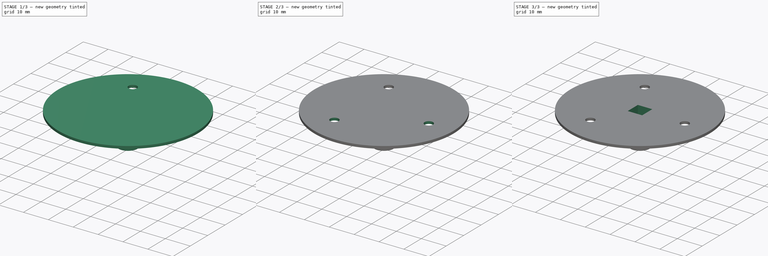
[diagram: build sequence overview — one tinted view per stage of 3, left to right]
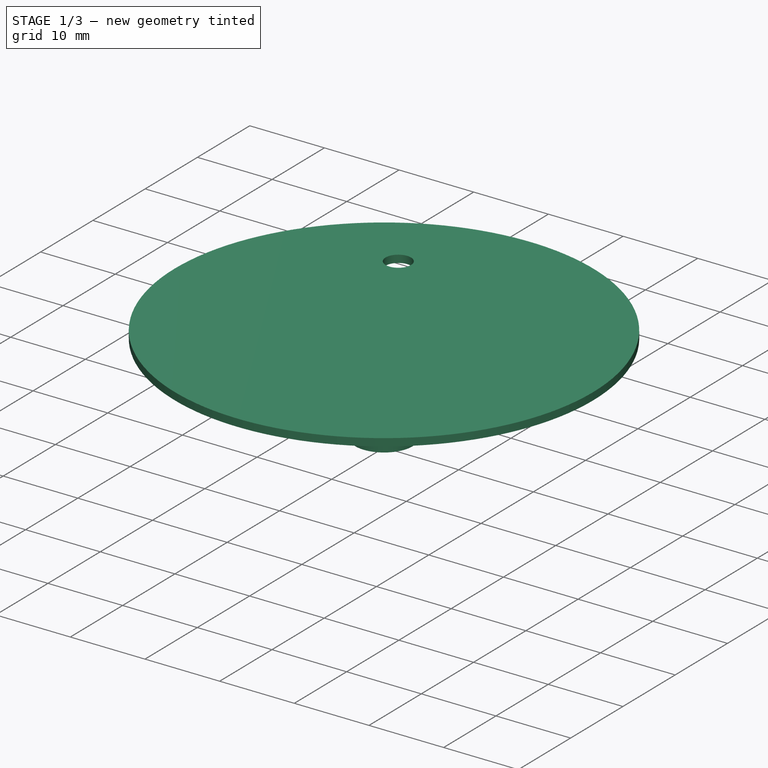
[diagram: stage 1 of 3 — iso view after this stage's code; geometry added in this stage tinted green]
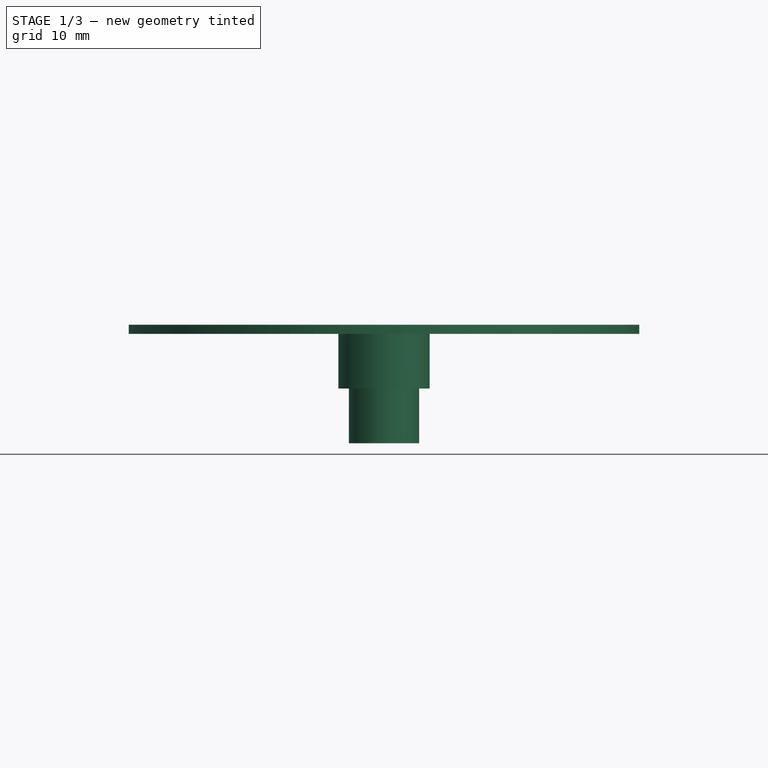
[diagram: stage 1 of 3 — front view after this stage's code; geometry added in this stage tinted green]
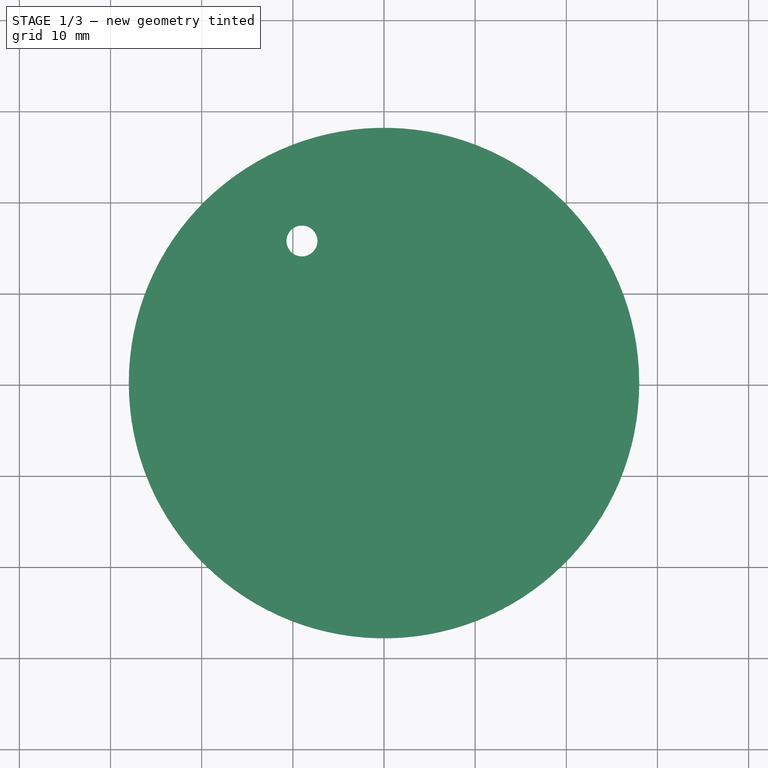
[diagram: stage 1 of 3 — top view after this stage's code; geometry added in this stage tinted green]
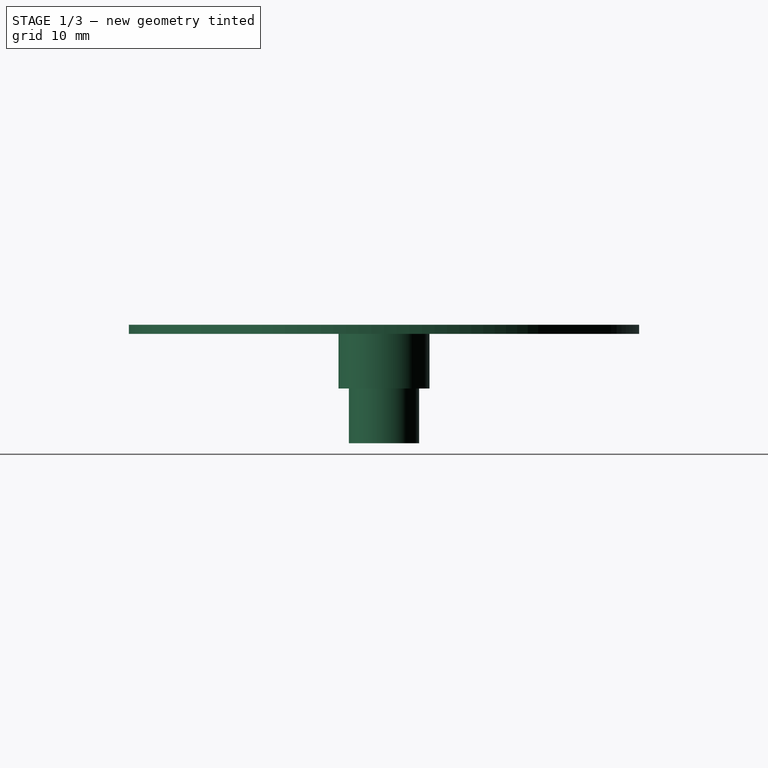
[diagram: stage 1 of 3 — right view after this stage's code; geometry added in this stage tinted green]
FCSTD DOCUMENT  (FreeCAD 1.0RUnknown)
Label: Shaft
License: All rights reserved
LicenseURL: http://en.wikipedia.org/wiki/All_rights_reserved
objects: PartDesign::Plane×4, Sketcher::SketchObject×4, PartDesign::Hole×2, App::Link×1, PartDesign::Revolution×1, PartDesign::PolarPattern×1, PartDesign::Pocket×1, PartDesign::Body×1
note: 27 computed .brp shape members not serialized (recipe doc carries the construction recipe); baked Part::Feature solids carry a one-line shape summary decoded from their .brp
EXTERNAL_REF file=Resources.FCStd obj=Spreadsheet

FEATURE [App::Link] Link  label="Dimensions"
  LinkedObject = -> <external Resources.FCStd>#Spreadsheet
FEATURE [PartDesign::Plane] DatumPlane  label="Plane_BaseBottom"
  AttachmentSupport = -> [XY_Plane]
  Length = 60
  MapMode = 5
  ResizeMode = 0
  Width = 60
FEATURE [PartDesign::Plane] DatumPlane001  label="Plane_BaseTop"
  AttachmentOffset = pos=(0,0,-1) rot=(0,0,1;0rad)
  AttachmentSupport = -> [DatumPlane]
  Length = 60
  MapMode = 5
  Placement = pos=(0,0,-1) rot=(0,0,1;0rad)
  ResizeMode = 0
  Width = 60
  expr: .AttachmentOffset.Base.z = -<<Dimensions>>.shaft_base_thickness
FEATURE [PartDesign::Plane] DatumPlane002  label="Plane_Spacer"
  AttachmentOffset = pos=(0,0,-6) rot=(0,0,1;0rad)
  AttachmentSupport = -> [DatumPlane001]
  Length = 60
  MapMode = 5
  Placement = pos=(0,0,-7) rot=(0,0,1;0rad)
  ResizeMode = 0
  Width = 60
  expr: .AttachmentOffset.Base.z = -<<Dimensions>>.shaft_spacer_length
FEATURE [PartDesign::Plane] DatumPlane003  label="Plane_ShaftEnd"
  AttachmentOffset = pos=(0,0,-6) rot=(0,0,1;0rad)
  AttachmentSupport = -> [DatumPlane002]
  Length = 60
  MapMode = 5
  Placement = pos=(0,0,-13) rot=(0,0,1;0rad)
  ResizeMode = 0
  Width = 60
  expr: .AttachmentOffset.Base.z = -<<Dimensions>>.bearing_B + 1 mm
FEATURE [Sketcher::SketchObject] Sketch
  ArcFitTolerance = 0
  AttachmentSupport = -> [XZ_Plane]
  ExternalGeometry = -> [DatumPlane003,DatumPlane002,DatumPlane001,DatumPlane]
  FullyConstrained = true
  MakeInternals = false
  MapMode = 5
  Placement = pos=(0,0,0) rot=(1,0,0;1.5708rad)
  expr: Constraints[20] = <<Dimensions>>.index_mirror_base_diameter / 2
  expr: Constraints[21] = -<<Dimensions>>.bearing_da / 2
  expr: Constraints[22] = <<Dimensions>>.bearing_d / 2 - <<Dimensions>>.clearance_tight_fit
  sketch-geometry (8):
    g0: LineSegment StartX=0 StartY=0 StartZ=0 EndX=-28 EndY=0 EndZ=0
    g1: LineSegment StartX=-28 StartY=0 StartZ=0 EndX=-28 EndY=-1 EndZ=0
    g2: LineSegment StartX=-28 StartY=-1 StartZ=0 EndX=-5 EndY=-1 EndZ=0
    g3: LineSegment StartX=-5 StartY=-1 StartZ=0 EndX=-5 EndY=-7 EndZ=0
    g4: LineSegment StartX=-5 StartY=-7 StartZ=0 EndX=-3.85 EndY=-7 EndZ=0
    g5: LineSegment StartX=-3.85 StartY=-7 StartZ=0 EndX=-3.85 EndY=-13 EndZ=0
    g6: LineSegment StartX=-3.85 StartY=-13 StartZ=0 EndX=0 EndY=-13 EndZ=0
    g7: LineSegment StartX=0 StartY=-13 StartZ=0 EndX=0 EndY=0 EndZ=0
  constraints (23):
    c: Horizontal(g0)
    c: Coincident(g0,g1)
    c: PointOnObject(g1,g-5)
    c: Vertical(g1)
    c: Coincident(g0,g-1)
    c: Coincident(g2,g1)
    c: Coincident(g3,g2)
    c: Vertical(g3)
    c: Coincident(g4,g3)
    c: Coincident(g5,g4)
    c: Vertical(g5)
    c: Coincident(g6,g5)
    c: Coincident(g7,g6)
    c: Coincident(g7,g0)
    c: Vertical(g7)
    c: PointOnObject(g5,g-3)
    c: PointOnObject(g3,g-4)
    c: PointOnObject(g2,g-5)
    c: PointOnObject(g4,g-4)
    c: PointOnObject(g6,g-3)
    c: Distance(g0) = 28
    c: DistanceX(g3) = -5
    c: DistanceX(g6,g6) = 3.85
FEATURE [PartDesign::Revolution] Revolution
  Angle = 360
  Angle2 = 60
  Axis = (0,2e-16,1)
  Base = (0,0,0)
  Placement = pos=(0,0,0) rot=(1,0,0;1.5708rad)
  Profile = -> Sketch
  ReferenceAxis = -> Sketch [V_Axis]
  Suppressed = false
  Type = 0
FEATURE [Sketcher::SketchObject] Sketch001
  ArcFitTolerance = 0
  AttachmentSupport = -> [DatumPlane]
  FullyConstrained = true
  MakeInternals = false
  MapMode = 5
  expr: Constraints[0] = <<Dimensions>>.index_mirror_screw_diameter
  expr: Constraints[1] = <<Dimensions>>.index_mirror_screw_center_distance
  sketch-geometry (2):
    g0: Circle CenterX=-9 CenterY=15.5885 CenterZ=0 NormalX=0 NormalY=0 NormalZ=1 AngleXU=0 Radius=1.5
    g1: LineSegment [constr] StartX=-9 StartY=15.5885 StartZ=0 EndX=0 EndY=-1.8e-15 EndZ=0
  constraints (5):
    c: Diameter(g0) = 3
    c: Distance(g-1,g0) = 18
    c: Coincident(g1,g0)
    c: Coincident(g1,g-1)
    c: Angle(g-2,g1) = 0.523599
FEATURE [PartDesign::Hole] Hole  label="Hole_IndexArm"
  BaseFeature = -> Revolution
  CustomThreadClearance = 0
  Depth = 131.59
  DepthType = 1
  Diameter = 3.4
  DrillForDepth = false
  DrillPoint = 1
  DrillPointAngle = 118
  HoleCutCountersinkAngle = 90
  HoleCutCustomValues = false
  HoleCutDepth = 0
  HoleCutDiameter = 6.1
  HoleCutType = 0
  ModelThread = false
  Placement = pos=(0,0,0) rot=(1,0,0;1.5708rad)
  Profile = -> Sketch001
  Suppressed = false
  Tapered = false
  TaperedAngle = 90
  ThreadClass = 0
  ThreadDepth = 131.59
  ThreadDepthType = 0
  ThreadDirection = 0
  ThreadFit = 0
  ThreadSize = 9
  ThreadType = 1
  Threaded = false
  UseCustomThreadClearance = false
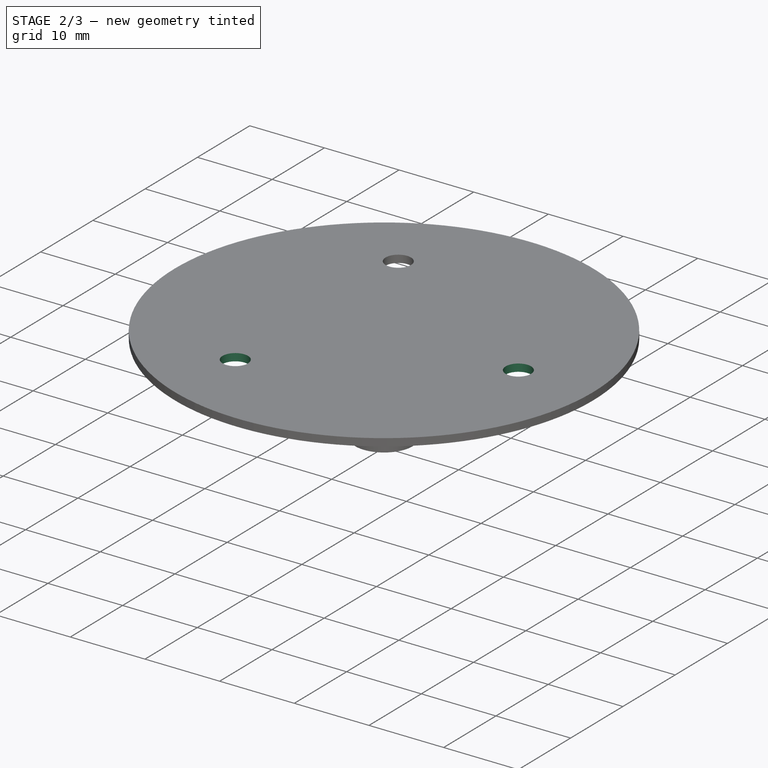
[diagram: stage 2 of 3 — iso view after this stage's code; geometry added in this stage tinted green]
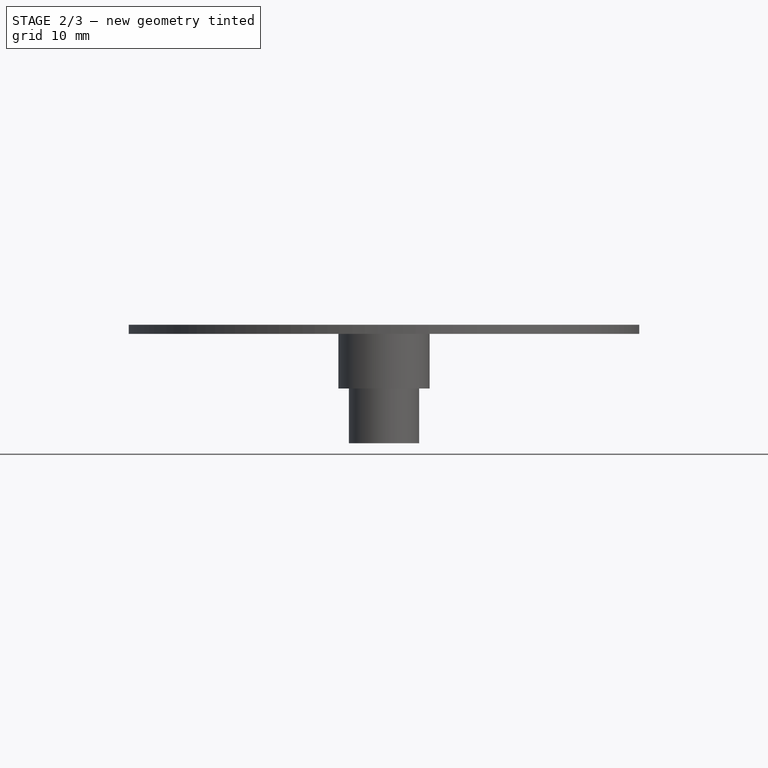
[diagram: stage 2 of 3 — front view after this stage's code; geometry added in this stage tinted green]
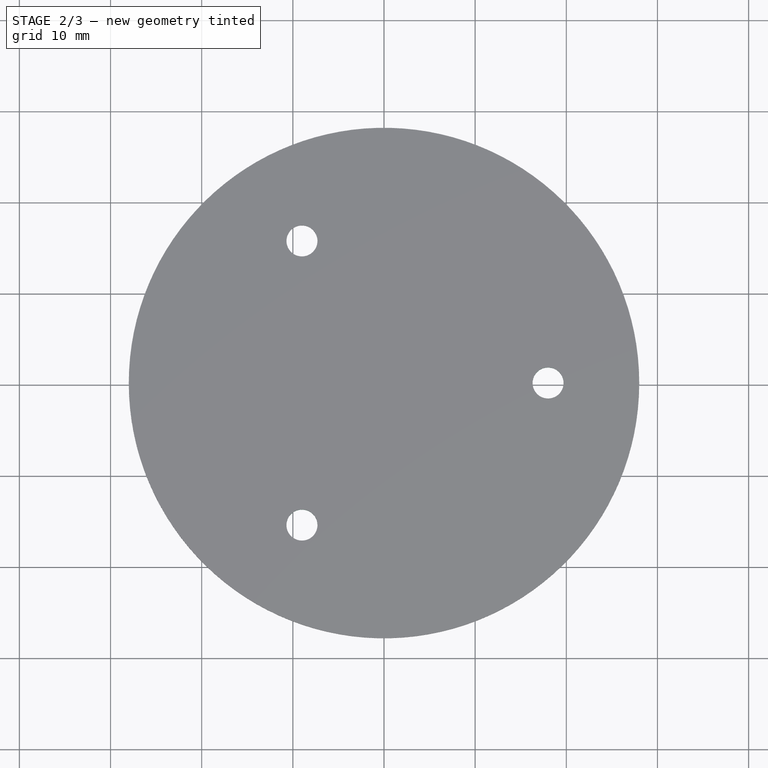
[diagram: stage 2 of 3 — top view after this stage's code; geometry added in this stage tinted green]
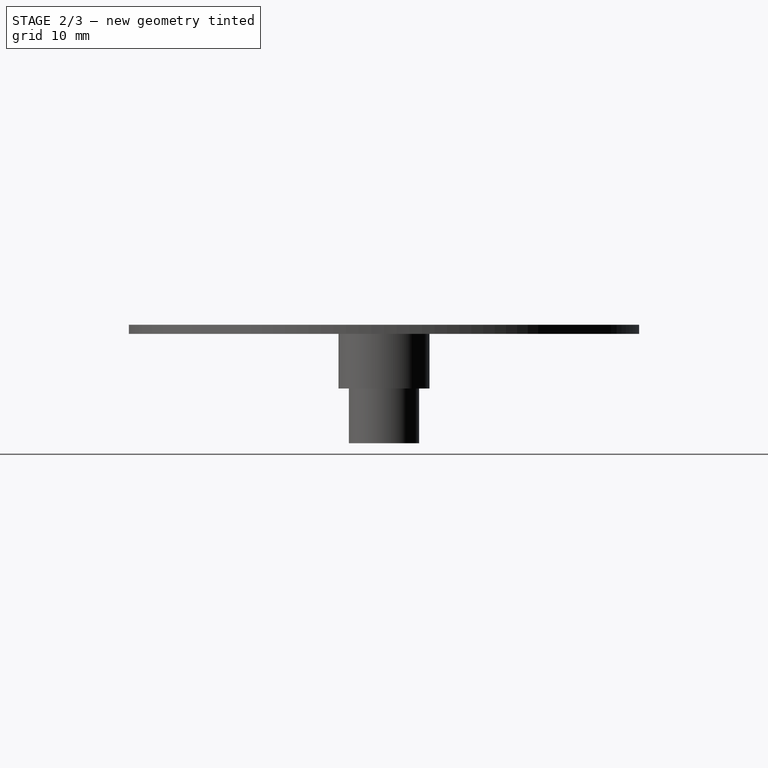
[diagram: stage 2 of 3 — right view after this stage's code; geometry added in this stage tinted green]
FEATURE [PartDesign::PolarPattern] PolarPattern  label="PolarPattern_Holes"
  Angle = 360
  Axis = -> Z_Axis
  BaseFeature = -> Hole
  Mode = 0
  Occurrences = 3
  Offset = 120
  Originals = -> [Hole]
  Placement = pos=(0,0,0) rot=(1,0,0;1.5708rad)
  Suppressed = false
  TransformMode = 0
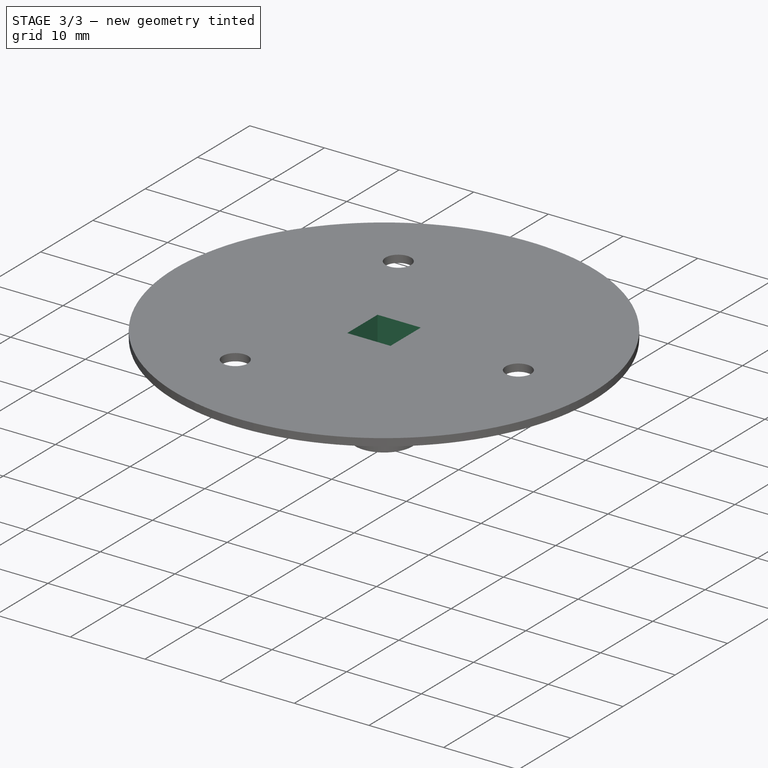
[diagram: stage 3 of 3 — iso view after this stage's code; geometry added in this stage tinted green]
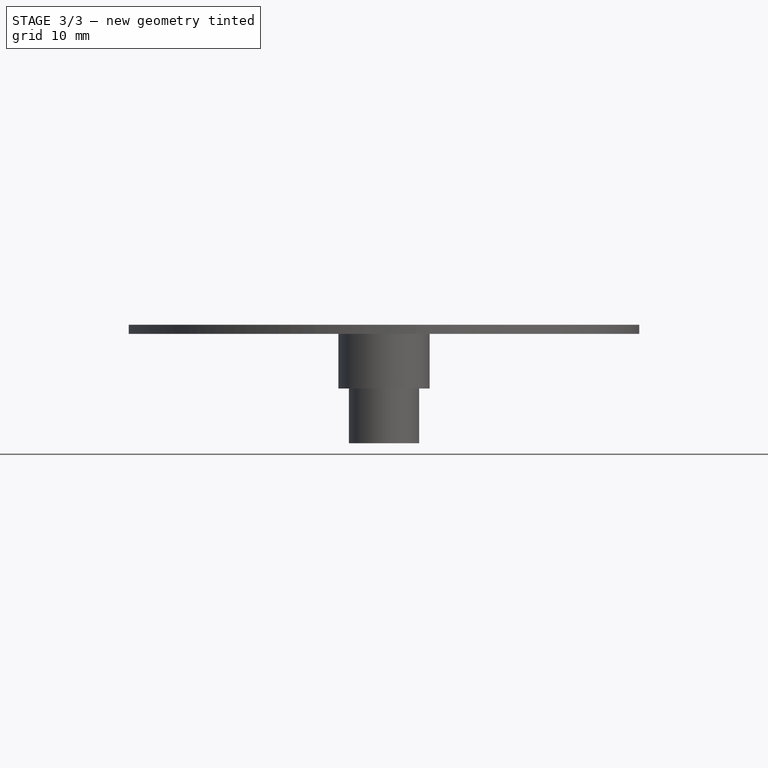
[diagram: stage 3 of 3 — front view after this stage's code; geometry added in this stage tinted green]
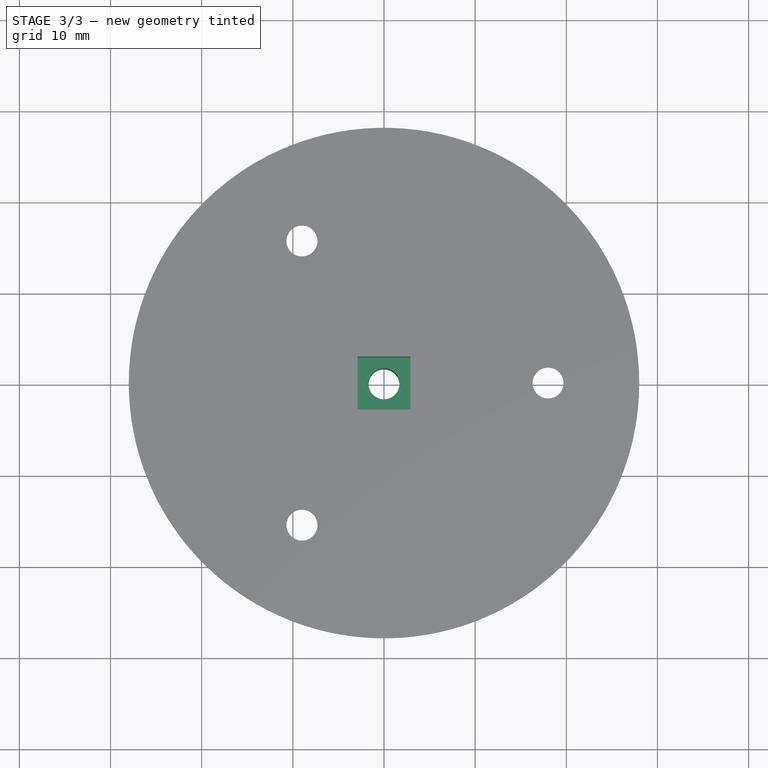
[diagram: stage 3 of 3 — top view after this stage's code; geometry added in this stage tinted green]
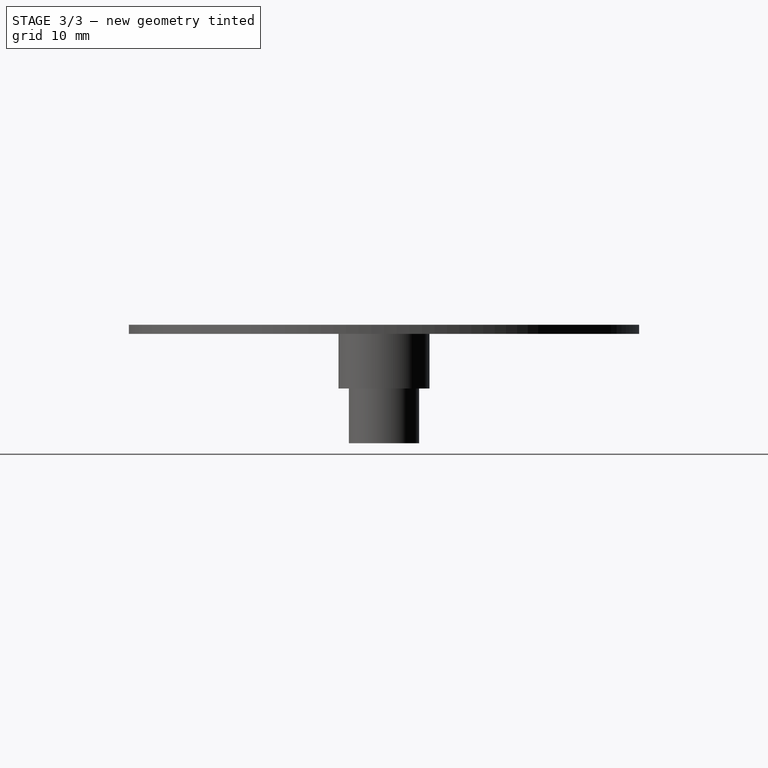
[diagram: stage 3 of 3 — right view after this stage's code; geometry added in this stage tinted green]
FEATURE [Sketcher::SketchObject] Sketch002
  ArcFitTolerance = 0
  AttachmentSupport = -> [DatumPlane]
  FullyConstrained = true
  MakeInternals = false
  MapMode = 5
  expr: Constraints[1] = <<Dimensions>>.shaft_end_cover_screw_diameter
  sketch-geometry (1):
    g0: Circle CenterX=0 CenterY=0 CenterZ=0 NormalX=0 NormalY=0 NormalZ=1 AngleXU=0 Radius=1.5
  constraints (2):
    c: Coincident(g0,g-1)
    c: Diameter(g0) = 3
FEATURE [PartDesign::Hole] Hole001  label="Hole_EndCover"
  BaseFeature = -> PolarPattern
  CustomThreadClearance = 0
  Depth = 10
  DepthType = 1
  Diameter = 3.4
  DrillForDepth = false
  DrillPoint = 0
  DrillPointAngle = 118
  HoleCutCountersinkAngle = 90
  HoleCutCustomValues = false
  HoleCutDepth = 4
  HoleCutDiameter = 3.9
  HoleCutType = 1
  ModelThread = false
  Placement = pos=(0,0,0) rot=(1,0,0;1.5708rad)
  Profile = -> Sketch002
  Suppressed = false
  Tapered = false
  TaperedAngle = 90
  ThreadClass = 0
  ThreadDepth = 10
  ThreadDepthType = 0
  ThreadDirection = 0
  ThreadFit = 0
  ThreadSize = 9
  ThreadType = 1
  Threaded = false
  UseCustomThreadClearance = false
  expr: Depth = <<Dimensions>>.shaft_end_cover_screw_length + <<Dimensions>>.screw_hole_extra_depth - <<Dimensions>>.bearing_housing_min_thickness
  expr: HoleCutDepth = <<Dimensions>>.shaft_end_cover_ti_L
  expr: HoleCutDiameter = <<Dimensions>>.shaft_end_cover_ti_D
  expr: ThreadSize = <<Dimensions>>.shaft_end_cover_screw_type
FEATURE [Sketcher::SketchObject] Sketch003
  ArcFitTolerance = 0
  AttachmentSupport = -> [DatumPlane]
  FullyConstrained = true
  MakeInternals = false
  MapMode = 5
  expr: Constraints[10] = 5.5 mm + 2 * <<Dimensions>>.clearance_tight_fit
  sketch-geometry (4):
    g0: LineSegment StartX=-2.9 StartY=2.9 StartZ=0 EndX=2.9 EndY=2.9 EndZ=0
    g1: LineSegment StartX=2.9 StartY=2.9 StartZ=0 EndX=2.9 EndY=-2.9 EndZ=0
    g2: LineSegment StartX=2.9 StartY=-2.9 StartZ=0 EndX=-2.9 EndY=-2.9 EndZ=0
    g3: LineSegment StartX=-2.9 StartY=-2.9 StartZ=0 EndX=-2.9 EndY=2.9 EndZ=0
  constraints (11):
    c: Coincident(g0,g1)
    c: Coincident(g1,g2)
    c: Coincident(g2,g3)
    c: Coincident(g3,g0)
    c: Horizontal(g0)
    c: Horizontal(g2)
    c: Vertical(g1)
    c: Vertical(g3)
    c: Symmetric(g0,g1,g-1)
    c: Equal(g1,g0)
    c: Distance(g0) = 5.8
FEATURE [PartDesign::Pocket] Pocket
  BaseFeature = -> Hole001
  Direction = (0,0,-1)
  Length = 5
  Length2 = 5
  Placement = pos=(0,0,0) rot=(1,0,0;1.5708rad)
  Profile = -> Sketch003
  ReferenceAxis = -> Sketch003 [N_Axis]
  Suppressed = false
  Type = 0
FEATURE [PartDesign::Body] Body  label="Shaft"
  AllowCompound = false
  Group = -> [DatumPlane,DatumPlane001,DatumPlane002,DatumPlane003,Sketch,Revolution,Sketch001,Hole,PolarPattern,Sketch002,Hole001,Sketch003,Pocket]
  Origin = -> Origin
  Tip = -> Pocket
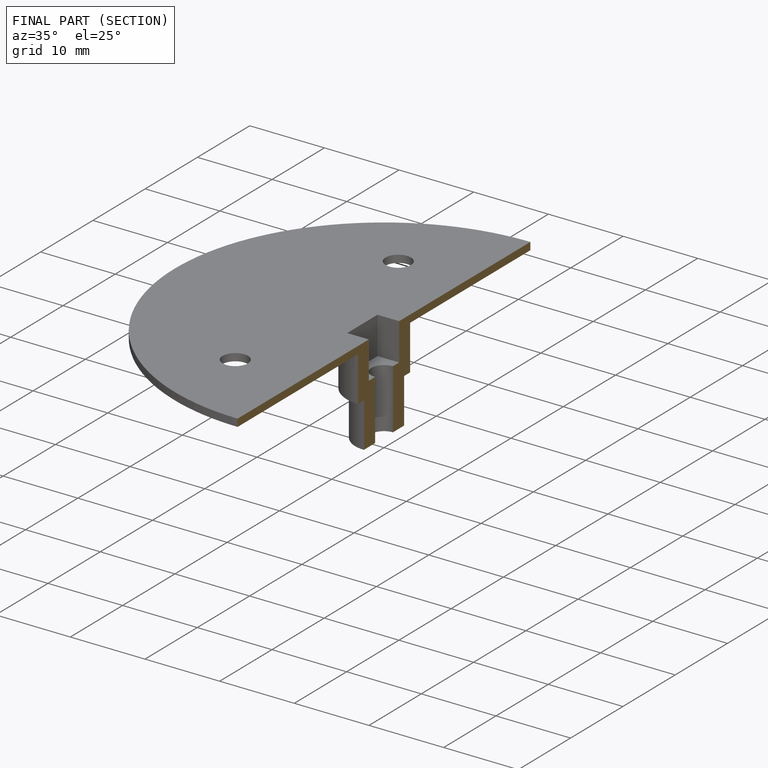
[diagram: finished part — half-section view (interior)]
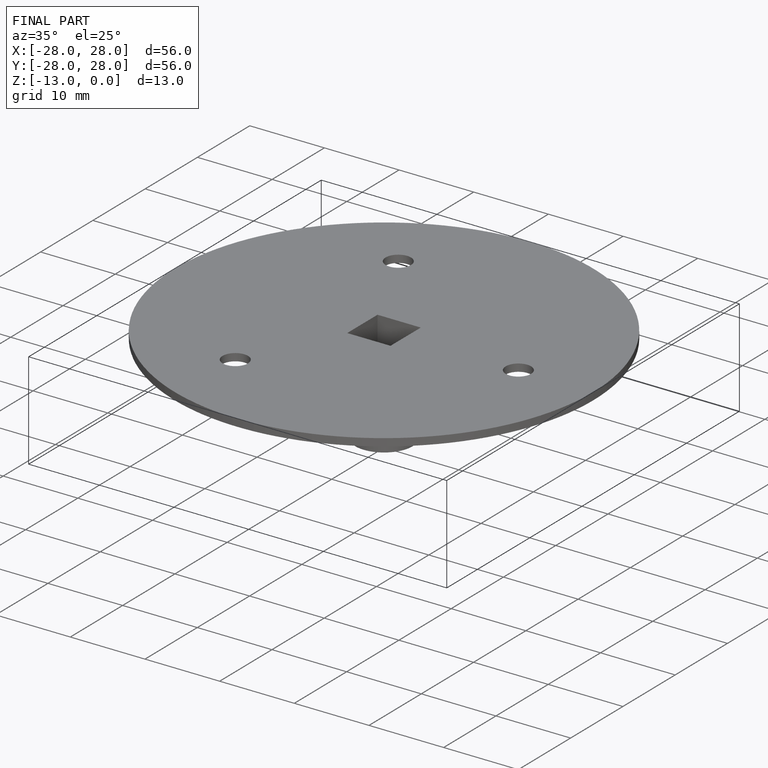
[diagram: finished part — iso view with bounding-box wireframe]
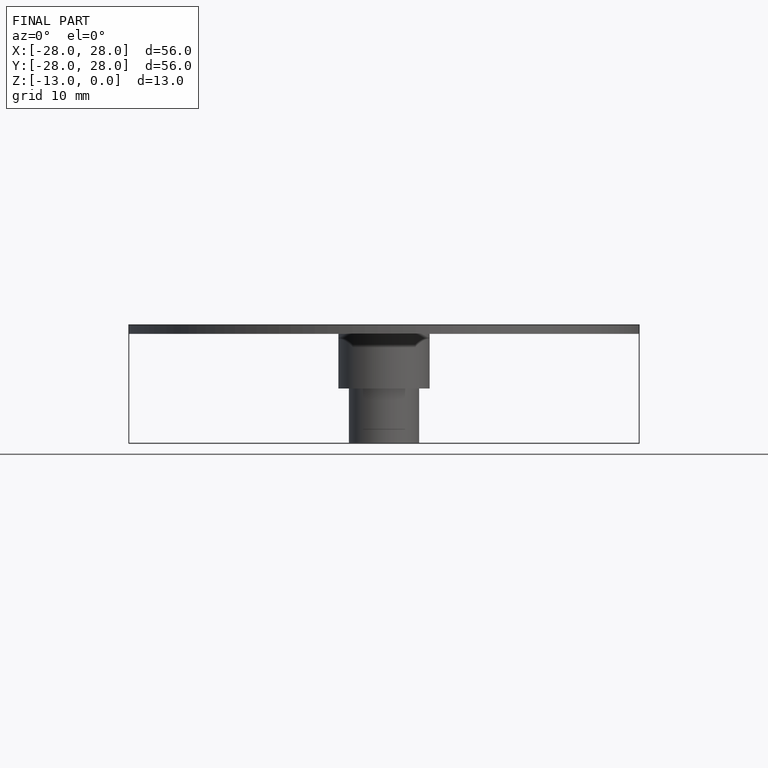
[diagram: finished part — front view with bounding-box wireframe]
